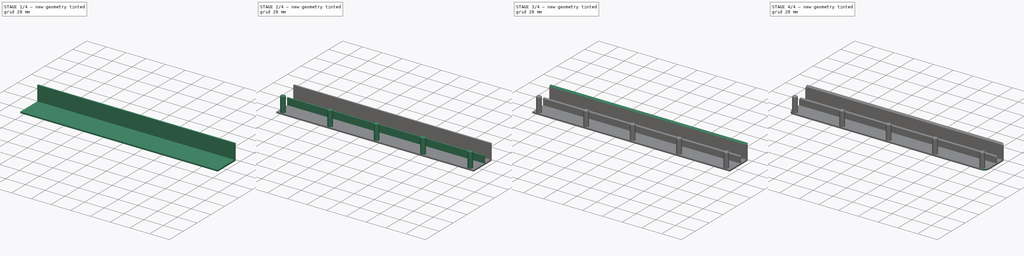
[diagram: build sequence overview — one tinted view per stage of 4, left to right]
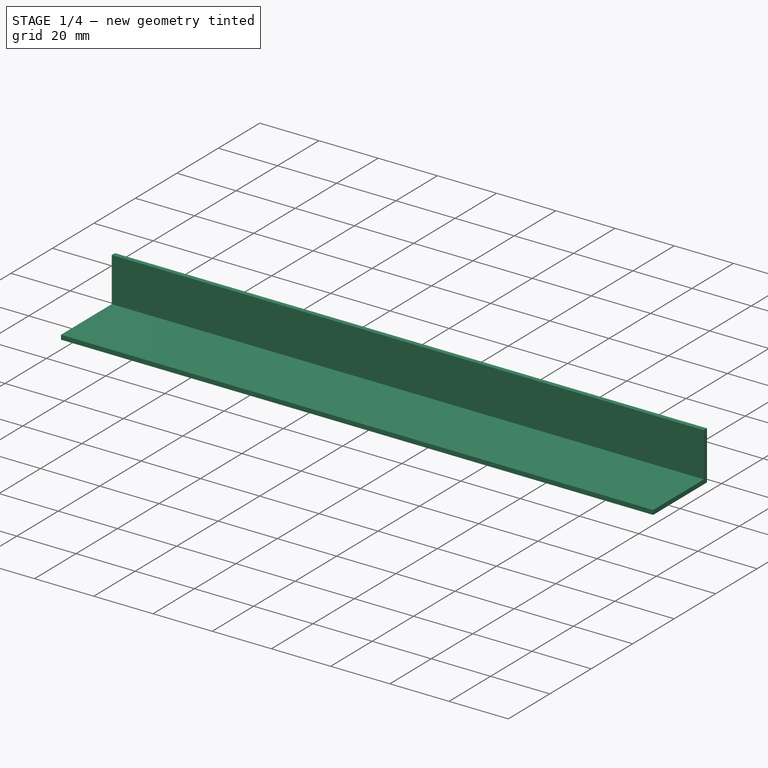
[diagram: stage 1 of 4 — iso view after this stage's code; geometry added in this stage tinted green]
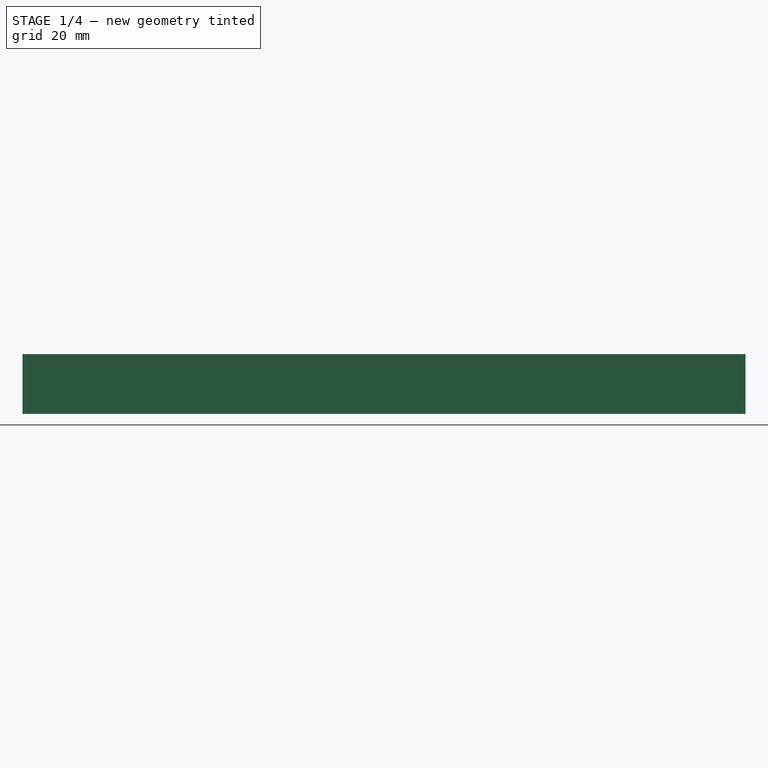
[diagram: stage 1 of 4 — front view after this stage's code; geometry added in this stage tinted green]
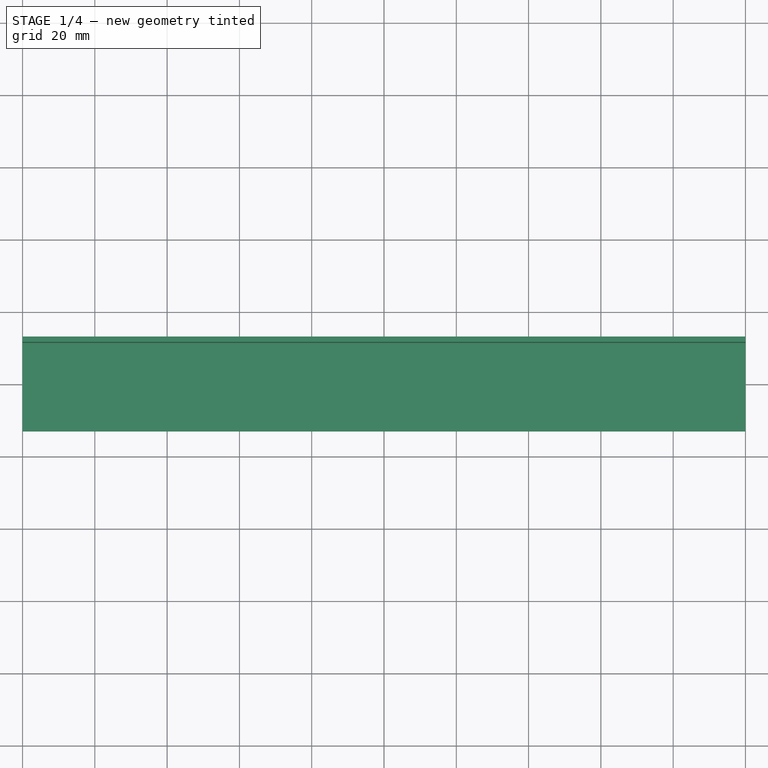
[diagram: stage 1 of 4 — top view after this stage's code; geometry added in this stage tinted green]
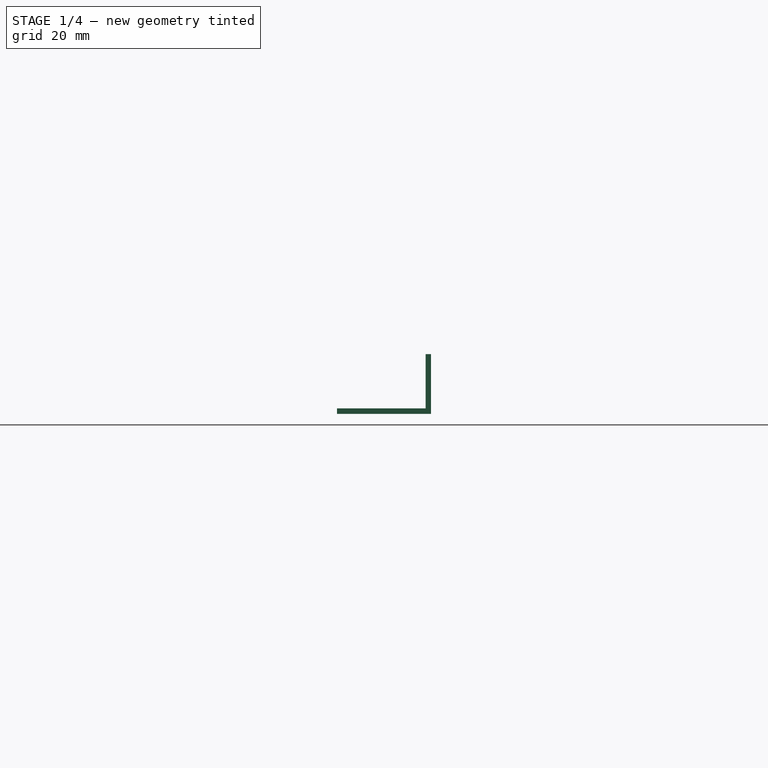
[diagram: stage 1 of 4 — right view after this stage's code; geometry added in this stage tinted green]
FCSTD DOCUMENT  (FreeCAD 0.20R29177 +426 (Git))
Label: 测量工具-挂架
License: All rights reserved
LicenseURL: http://en.wikipedia.org/wiki/All_rights_reserved
objects: Sketcher::SketchObject×4, PartDesign::Pad×4, PartDesign::Fillet×3, PartDesign::Chamfer×2, PartDesign::Body×1
note: 23 computed .brp shape members not serialized (recipe doc carries the construction recipe); baked Part::Feature solids carry a one-line shape summary decoded from their .brp

FEATURE [Sketcher::SketchObject] Sketch
  FullyConstrained = true
  MapMode = 5
  Support = -> [XY_Plane]
  sketch-geometry (4):
    g0: LineSegment StartX=-100 StartY=13 StartZ=0 EndX=100 EndY=13 EndZ=0
    g1: LineSegment StartX=100 StartY=13 StartZ=0 EndX=100 EndY=-13 EndZ=0
    g2: LineSegment StartX=100 StartY=-13 StartZ=0 EndX=-100 EndY=-13 EndZ=0
    g3: LineSegment StartX=-100 StartY=-13 StartZ=0 EndX=-100 EndY=13 EndZ=0
  constraints (11):
    c: Coincident(g0,g1)
    c: Coincident(g1,g2)
    c: Coincident(g2,g3)
    c: Coincident(g3,g0)
    c: Horizontal(g0)
    c: Horizontal(g2)
    c: Vertical(g1)
    c: Vertical(g3)
    c: Symmetric(g2,g0,g-1)
    c: DistanceX(g0,g0) = 200
    c: DistanceY(g3,g3) = 26
FEATURE [PartDesign::Pad] Pad
  Direction = (0,0,1)
  Length = 1.5
  Length2 = 10
  Profile = -> Sketch
  ReferenceAxis = -> Sketch [N_Axis]
  Type = 0
FEATURE [Sketcher::SketchObject] Sketch001
  ExternalGeometry = -> [Pad]
  FullyConstrained = true
  MapMode = 5
  Placement = pos=(0,0,1.5) rot=(0,0,1;0rad)
  Support = -> [Pad]
  sketch-geometry (4):
    g0: LineSegment StartX=-100 StartY=13 StartZ=0 EndX=100 EndY=13 EndZ=0
    g1: LineSegment StartX=100 StartY=13 StartZ=0 EndX=100 EndY=11.5 EndZ=0
    g2: LineSegment StartX=100 StartY=11.5 StartZ=0 EndX=-100 EndY=11.5 EndZ=0
    g3: LineSegment StartX=-100 StartY=11.5 StartZ=0 EndX=-100 EndY=13 EndZ=0
  constraints (10):
    c: Coincident(g0,g1)
    c: Coincident(g1,g2)
    c: Coincident(g2,g3)
    c: Coincident(g3,g0)
    c: Horizontal(g2)
    c: Vertical(g1)
    c: Vertical(g3)
    c: Coincident(g0,g-6)
    c: Coincident(g0,g-5)
    c: DistanceY(g3,g3) = 1.5
FEATURE [PartDesign::Pad] Pad001
  BaseFeature = -> Pad
  Direction = (0,0,1)
  Length = 15
  Length2 = 10
  Profile = -> Sketch001
  ReferenceAxis = -> Sketch001 [N_Axis]
  Type = 0
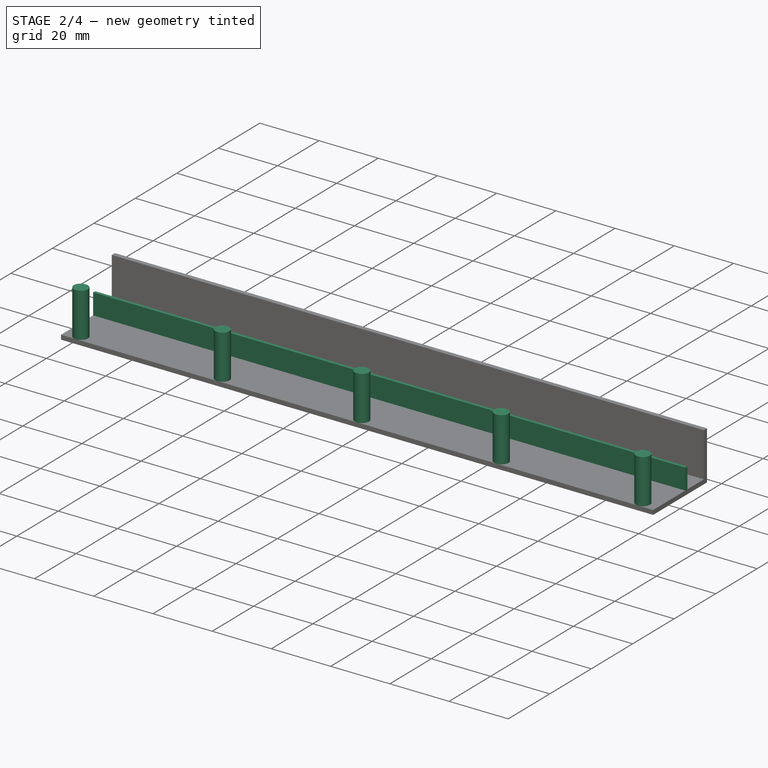
[diagram: stage 2 of 4 — iso view after this stage's code; geometry added in this stage tinted green]
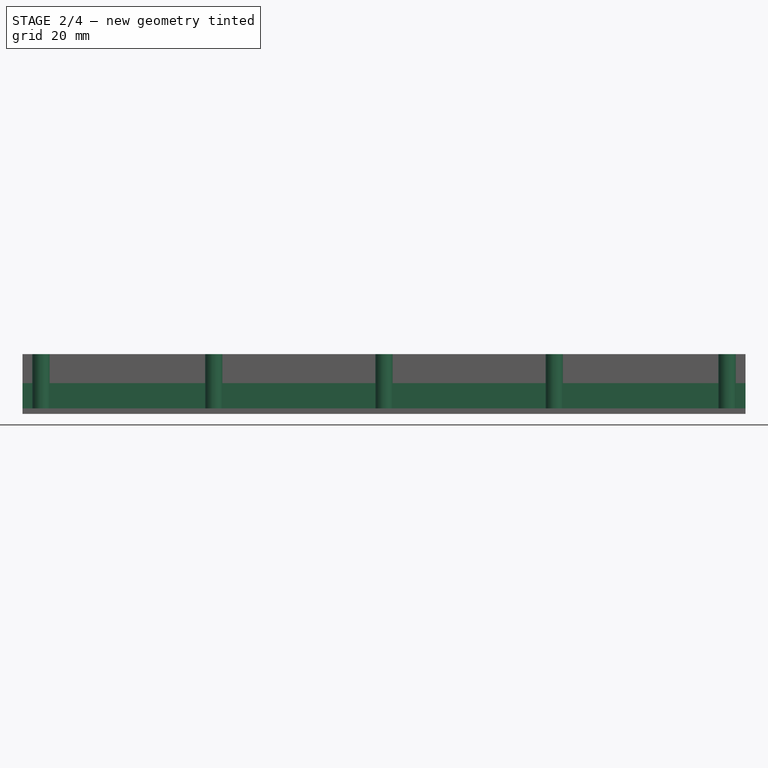
[diagram: stage 2 of 4 — front view after this stage's code; geometry added in this stage tinted green]
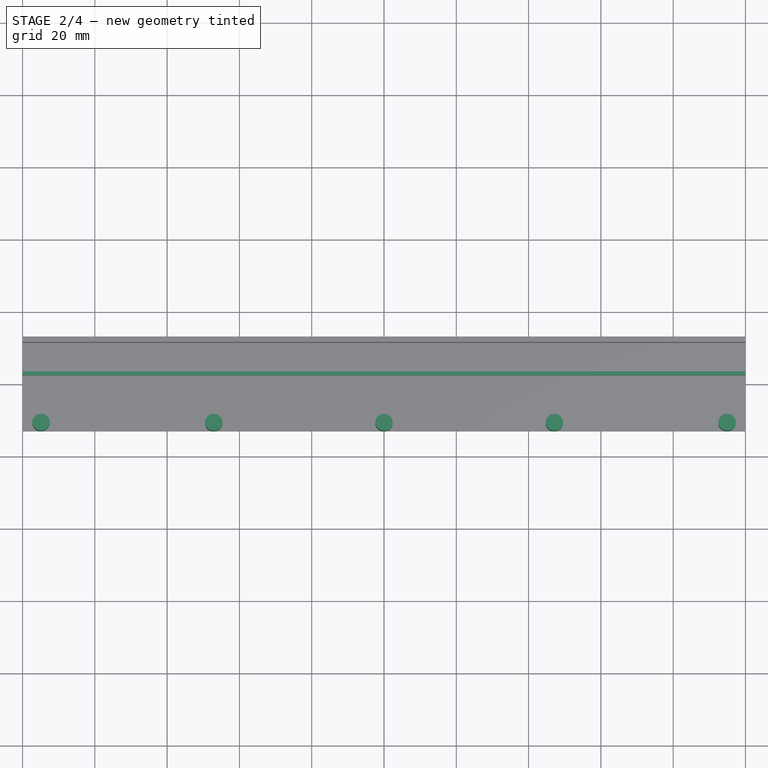
[diagram: stage 2 of 4 — top view after this stage's code; geometry added in this stage tinted green]
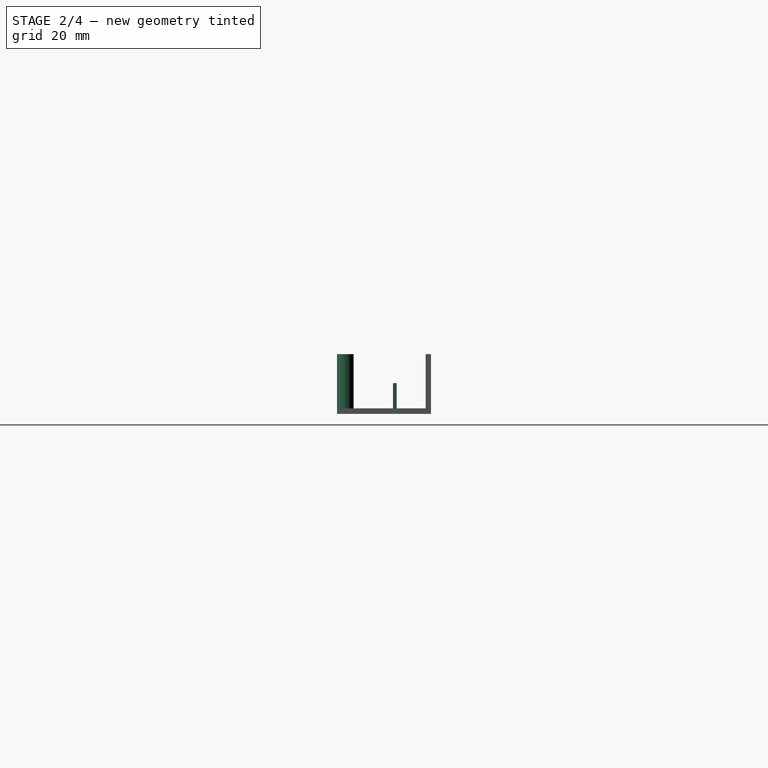
[diagram: stage 2 of 4 — right view after this stage's code; geometry added in this stage tinted green]
FEATURE [Sketcher::SketchObject] Sketch002
  ExternalGeometry = -> [Pad001]
  FullyConstrained = true
  MapMode = 5
  Placement = pos=(0,0,1.5) rot=(0,0,1;0rad)
  Support = -> [Pad001]
  sketch-geometry (4):
    g0: LineSegment StartX=-100 StartY=3.5 StartZ=0 EndX=100 EndY=3.5 EndZ=0
    g1: LineSegment StartX=100 StartY=3.5 StartZ=0 EndX=100 EndY=2.5 EndZ=0
    g2: LineSegment StartX=100 StartY=2.5 StartZ=0 EndX=-100 EndY=2.5 EndZ=0
    g3: LineSegment StartX=-100 StartY=2.5 StartZ=0 EndX=-100 EndY=3.5 EndZ=0
  constraints (12):
    c: Coincident(g0,g1)
    c: Coincident(g1,g2)
    c: Coincident(g2,g3)
    c: Coincident(g3,g0)
    c: Horizontal(g0)
    c: Horizontal(g2)
    c: Vertical(g1)
    c: Vertical(g3)
    c: PointOnObject(g0,g-6)
    c: DistanceY(g3,g3) = 1
    c: PointOnObject(g0,g-4)
    c: Distance(g0,g-3) = 8
FEATURE [PartDesign::Pad] Pad002
  BaseFeature = -> Pad001
  Direction = (0,0,1)
  Length = 7
  Length2 = 10
  Profile = -> Sketch002
  ReferenceAxis = -> Sketch002 [N_Axis]
  Type = 0
FEATURE [Sketcher::SketchObject] Sketch003
  ExternalGeometry = -> [Pad002]
  FullyConstrained = true
  MapMode = 5
  Placement = pos=(0,0,1.5) rot=(0,0,1;0rad)
  Support = -> [Pad002]
  sketch-geometry (20):
    g0: ArcOfCircle CenterX=-95 CenterY=-10.7 CenterZ=0 NormalX=0 NormalY=0 NormalZ=1 AngleXU=0 Radius=2.3 StartAngle=1.5708 EndAngle=4.71239
    g1: ArcOfCircle CenterX=-94.8 CenterY=-10.7 CenterZ=0 NormalX=0 NormalY=0 NormalZ=1 AngleXU=0 Radius=2.3 StartAngle=4.71239 EndAngle=7.85398
    g2: LineSegment StartX=-95 StartY=-13 StartZ=0 EndX=-94.8 EndY=-13 EndZ=0
    g3: LineSegment StartX=-94.8 StartY=-8.4 StartZ=0 EndX=-95 EndY=-8.4 EndZ=0
    g4: ArcOfCircle CenterX=47 CenterY=-10.7 CenterZ=0 NormalX=0 NormalY=0 NormalZ=1 AngleXU=0 Radius=2.3 StartAngle=1.5708 EndAngle=4.71239
    g5: ArcOfCircle CenterX=47.2 CenterY=-10.7 CenterZ=0 NormalX=0 NormalY=0 NormalZ=1 AngleXU=0 Radius=2.3 StartAngle=4.71239 EndAngle=7.85398
    g6: LineSegment StartX=47 StartY=-13 StartZ=0 EndX=47.2 EndY=-13 EndZ=0
    g7: LineSegment StartX=47.2 StartY=-8.4 StartZ=0 EndX=47 EndY=-8.4 EndZ=0
    g8: ArcOfCircle CenterX=94.8 CenterY=-10.7 CenterZ=0 NormalX=0 NormalY=0 NormalZ=1 AngleXU=0 Radius=2.3 StartAngle=1.5708 EndAngle=4.71239
    g9: ArcOfCircle CenterX=95 CenterY=-10.7 CenterZ=0 NormalX=0 NormalY=0 NormalZ=1 AngleXU=0 Radius=2.3 StartAngle=4.71239 EndAngle=7.85398
    g10: LineSegment StartX=94.8 StartY=-13 StartZ=0 EndX=95 EndY=-13 EndZ=0
    g11: LineSegment StartX=95 StartY=-8.4 StartZ=0 EndX=94.8 EndY=-8.4 EndZ=0
    g12: ArcOfCircle CenterX=-47.2 CenterY=-10.7 CenterZ=0 NormalX=0 NormalY=0 NormalZ=1 AngleXU=0 Radius=2.3 StartAngle=1.5708 EndAngle=4.71239
    g13: ArcOfCircle CenterX=-47 CenterY=-10.7 CenterZ=0 NormalX=0 NormalY=0 NormalZ=1 AngleXU=0 Radius=2.3 StartAngle=4.71239 EndAngle=7.85398
    g14: LineSegment StartX=-47.2 StartY=-13 StartZ=0 EndX=-47 EndY=-13 EndZ=0
    g15: LineSegment StartX=-47 StartY=-8.4 StartZ=0 EndX=-47.2 EndY=-8.4 EndZ=0
    g16: ArcOfCircle CenterX=-0.1 CenterY=-10.7 CenterZ=0 NormalX=0 NormalY=0 NormalZ=1 AngleXU=0 Radius=2.3 StartAngle=1.5708 EndAngle=4.71239
    g17: ArcOfCircle CenterX=0.1 CenterY=-10.7 CenterZ=0 NormalX=0 NormalY=0 NormalZ=1 AngleXU=0 Radius=2.3 StartAngle=4.71239 EndAngle=7.85398
    g18: LineSegment StartX=-0.1 StartY=-13 StartZ=0 EndX=0.1 EndY=-13 EndZ=0
    g19: LineSegment StartX=0.1 StartY=-8.4 StartZ=0 EndX=-0.1 EndY=-8.4 EndZ=0
  constraints (49):
    c: Tangent(g2,g1) = -1.5708
    c: Tangent(g1,g3) = -1.5708
    c: Tangent(g3,g0) = -1.5708
    c: Horizontal(g2)
    c: Tangent(g4,g6) = -1.5708
    c: Tangent(g6,g5) = -1.5708
    c: Tangent(g5,g7) = -1.5708
    c: Tangent(g7,g4) = -1.5708
    c: Equal(g4,g5)
    c: Horizontal(g6)
    c: Tangent(g8,g10) = -1.5708
    c: Tangent(g10,g9) = -1.5708
    c: Tangent(g9,g11) = -1.5708
    c: Tangent(g11,g8) = -1.5708
    c: Equal(g8,g9)
    c: Horizontal(g10)
    c: Tangent(g12,g14) = -1.5708
    c: Tangent(g14,g13) = -1.5708
    c: Tangent(g13,g15) = -1.5708
    c: Tangent(g15,g12) = -1.5708
    c: Equal(g12,g13)
    c: Horizontal(g14)
    c: Equal(g2,g14)
    c: Equal(g14,g6)
    c: Equal(g6,g10)
    c: Equal(g12,g4)
    c: Equal(g4,g8)
    c: DistanceX(g2,g2) = 0.2
    c: Radius(g0) = 2.3
    c: Horizontal(g1,g13)
    c: Horizontal(g13,g4)
    c: Horizontal(g4,g8)
    c: DistanceX(g-2,g13) = -47
    c: DistanceX(g-2,g4) = 47
    c: Tangent(g2,g0) = -1.5708
    c: PointOnObject(g0,g-3)
    c: Horizontal(g3)
    c: Distance(g0,g-5) = 5
    c: PointOnObject(g12,g-3)
    c: Distance(g9,g-6) = 5
    c: Tangent(g16,g18) = -1.5708
    c: Tangent(g18,g17) = -1.5708
    c: Tangent(g17,g19) = -1.5708
    c: Tangent(g19,g16) = -1.5708
    c: Equal(g16,g17)
    c: Symmetric(g16,g17,g-2)
    c: PointOnObject(g16,g-3)
    c: Distance(g16,g17) = 0.2
    c: Radius(g16) = 2.3
FEATURE [PartDesign::Pad] Pad003
  BaseFeature = -> Pad002
  Direction = (0,0,1)
  Length = 15
  Length2 = 10
  Profile = -> Sketch003
  ReferenceAxis = -> Sketch003 [N_Axis]
  Type = 0
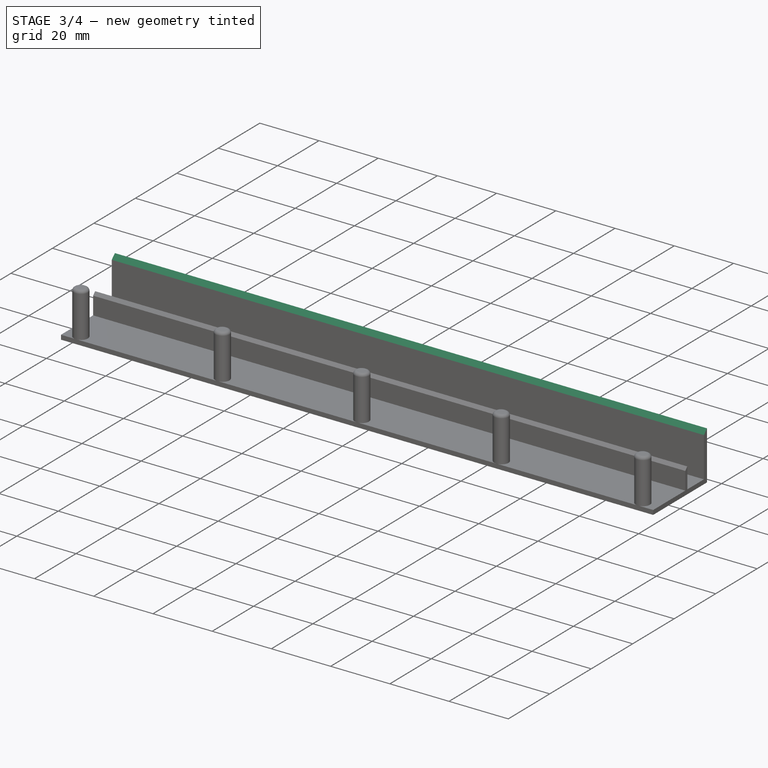
[diagram: stage 3 of 4 — iso view after this stage's code; geometry added in this stage tinted green]
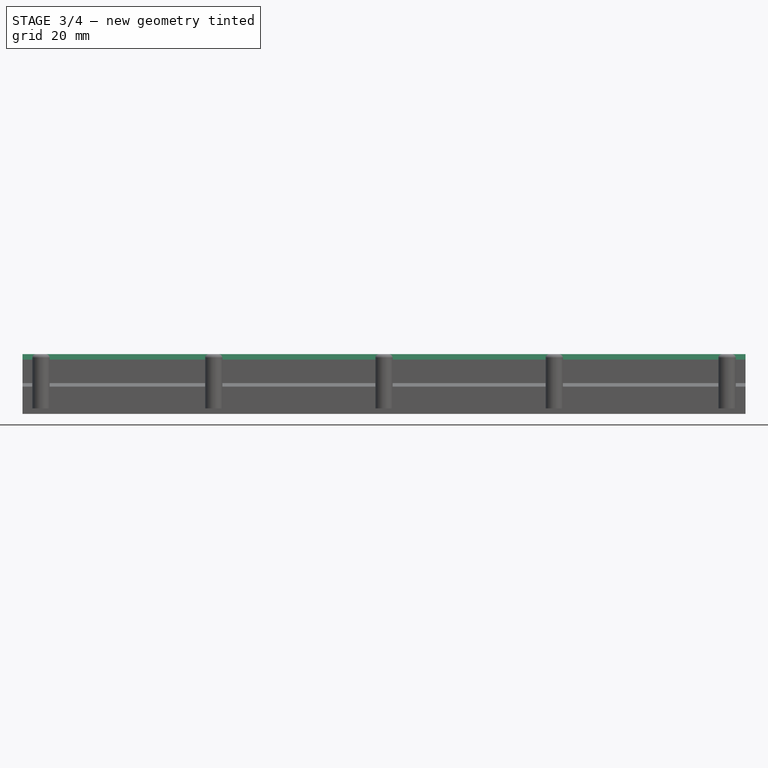
[diagram: stage 3 of 4 — front view after this stage's code; geometry added in this stage tinted green]
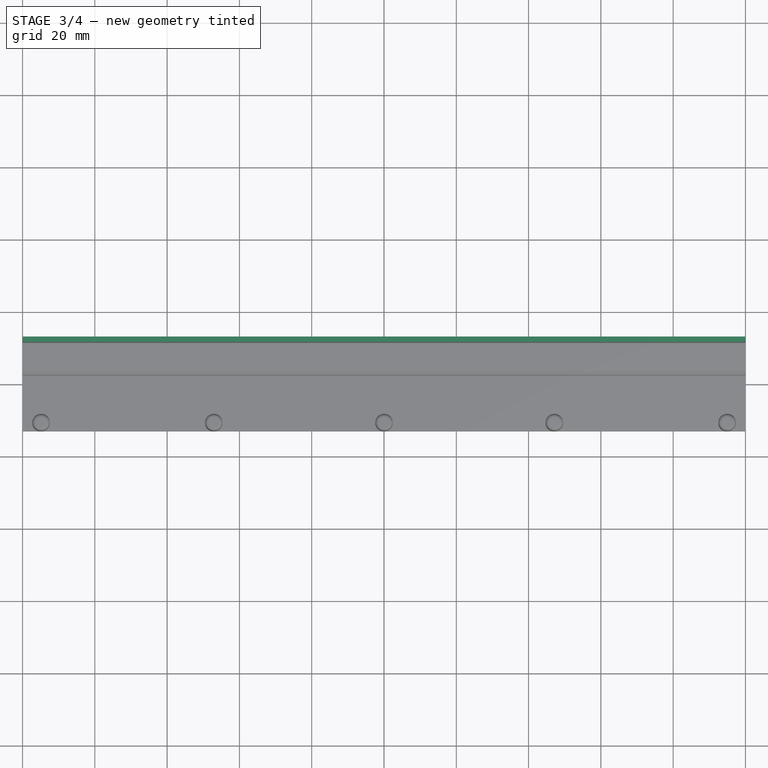
[diagram: stage 3 of 4 — top view after this stage's code; geometry added in this stage tinted green]
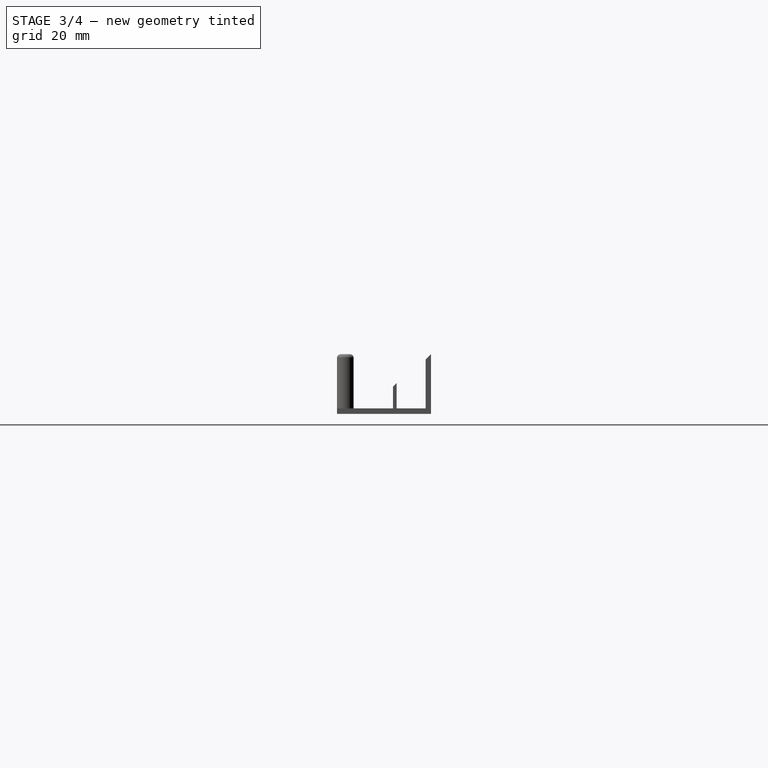
[diagram: stage 3 of 4 — right view after this stage's code; geometry added in this stage tinted green]
FEATURE [PartDesign::Chamfer] Chamfer
  Angle = 45
  Base = -> Pad003 [Edge60]
  BaseFeature = -> Pad003
  ChamferType = 0
  FlipDirection = false
  Size = 1.49
  Size2 = 1
  SupportTransform = false
  UseAllEdges = false
FEATURE [PartDesign::Chamfer] Chamfer001
  Angle = 45
  Base = -> Chamfer [Edge104]
  BaseFeature = -> Chamfer
  ChamferType = 0
  FlipDirection = false
  Size = 0.99
  Size2 = 1
  SupportTransform = false
  UseAllEdges = false
FEATURE [PartDesign::Fillet] Fillet
  Base = -> Chamfer001 [Edge92,Edge85,Edge78,Edge71,Edge64]
  BaseFeature = -> Chamfer001
  Radius = 1
  SupportTransform = false
  UseAllEdges = false
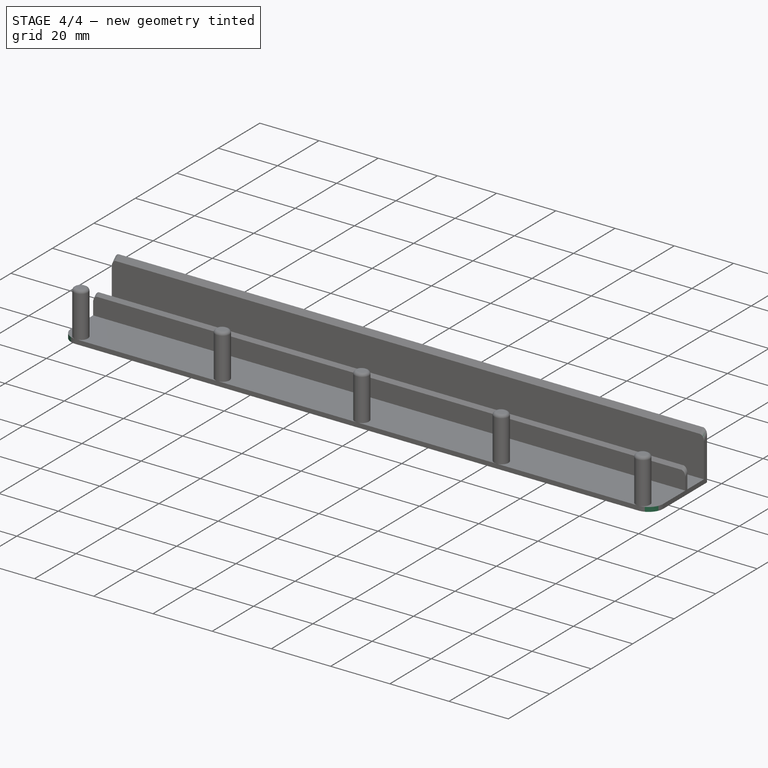
[diagram: stage 4 of 4 — iso view after this stage's code; geometry added in this stage tinted green]
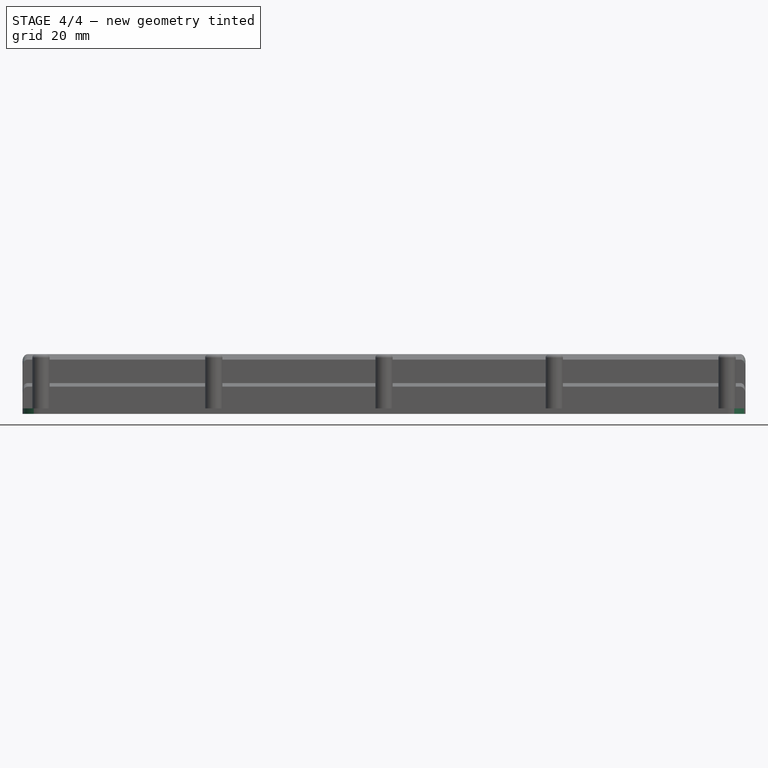
[diagram: stage 4 of 4 — front view after this stage's code; geometry added in this stage tinted green]
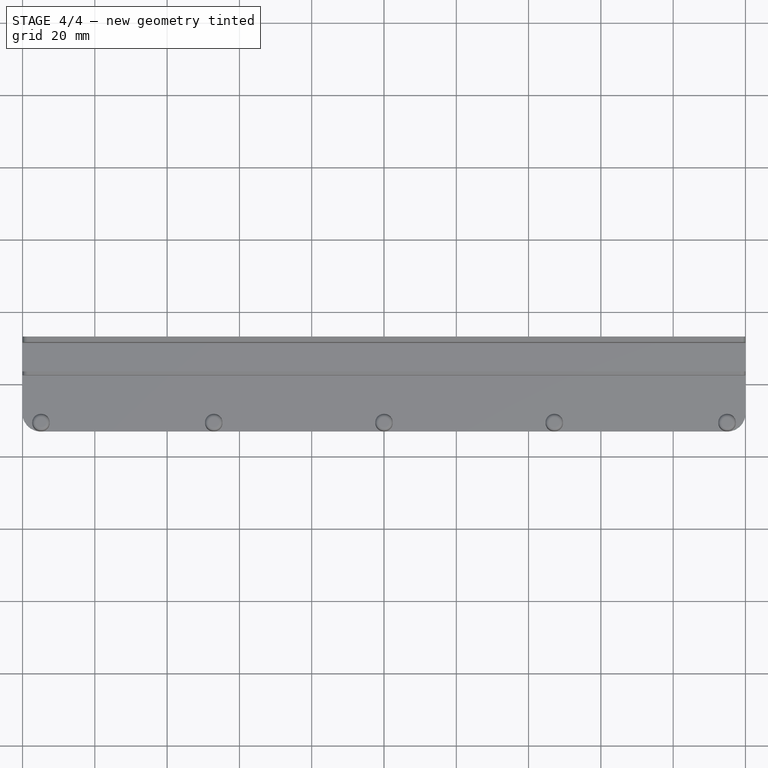
[diagram: stage 4 of 4 — top view after this stage's code; geometry added in this stage tinted green]
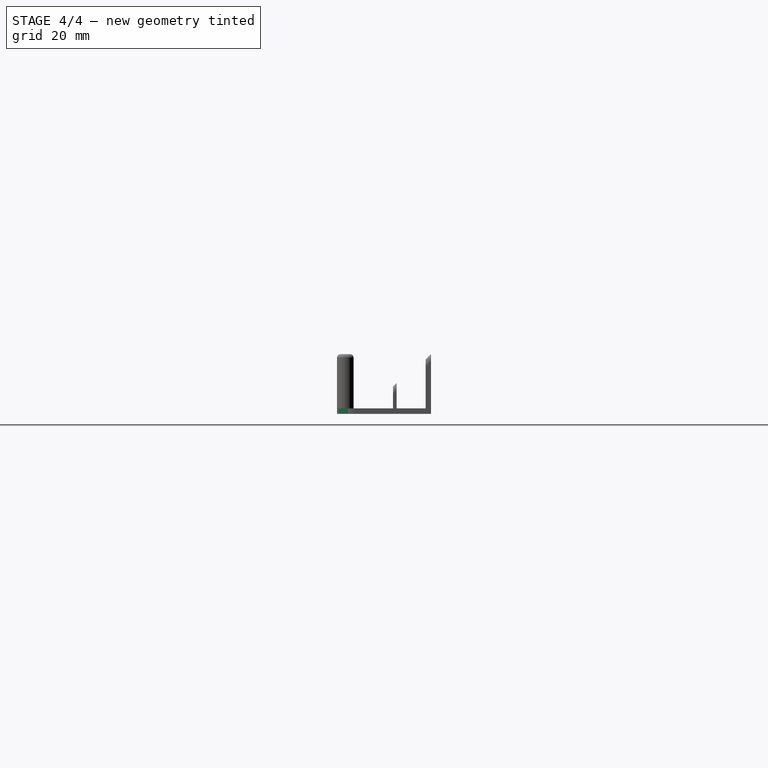
[diagram: stage 4 of 4 — right view after this stage's code; geometry added in this stage tinted green]
FEATURE [PartDesign::Fillet] Fillet001
  Base = -> Fillet [Edge40,Edge39]
  BaseFeature = -> Fillet
  Radius = 5
  SupportTransform = false
  UseAllEdges = false
FEATURE [PartDesign::Fillet] Fillet002
  Base = -> Fillet001 [Edge91,Edge97,Edge105,Edge88]
  BaseFeature = -> Fillet001
  Radius = 1.41
  SupportTransform = false
  UseAllEdges = false
FEATURE [PartDesign::Body] Body
  Group = -> [Sketch,Pad,Sketch001,Pad001,Sketch002,Pad002,Sketch003,Pad003,Chamfer,Chamfer001,Fillet,Fillet001,Fillet002]
  Origin = -> Origin
  Tip = -> Fillet002
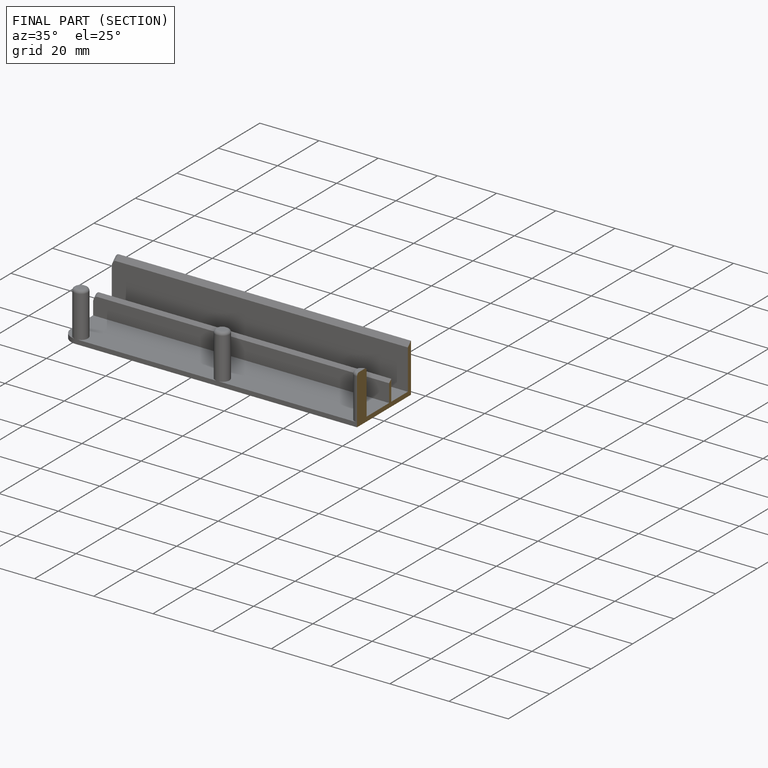
[diagram: finished part — half-section view (interior)]
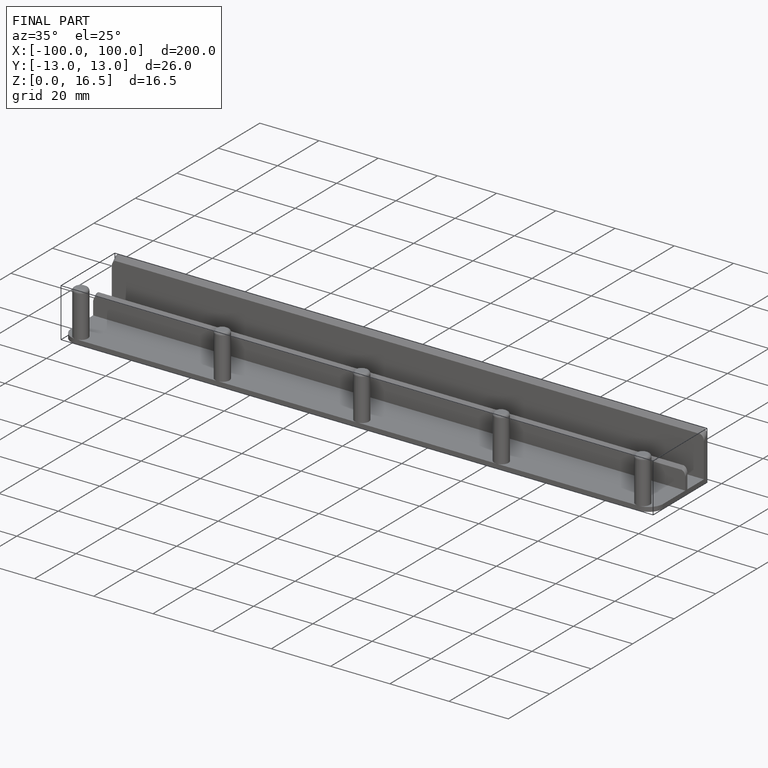
[diagram: finished part — iso view with bounding-box wireframe]
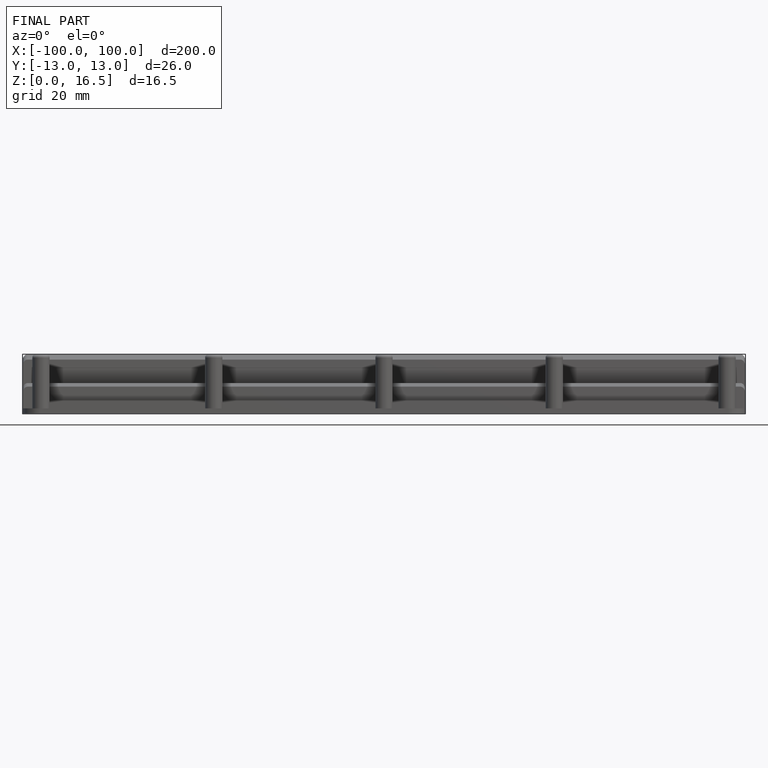
[diagram: finished part — front view with bounding-box wireframe]
